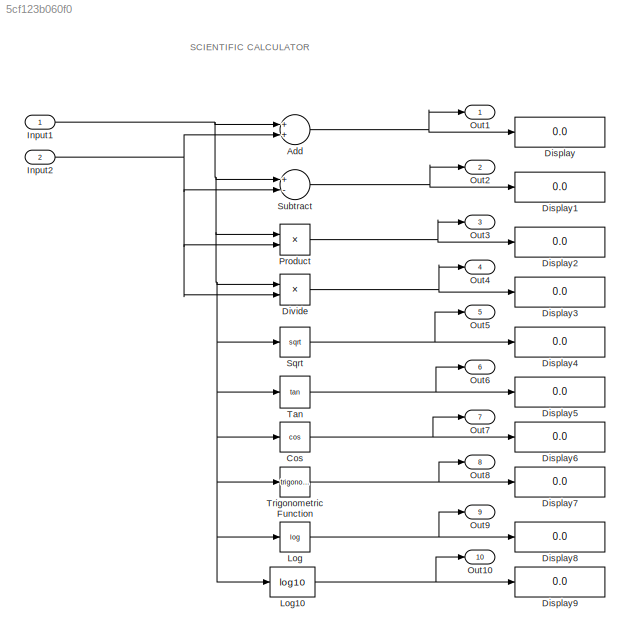
MODEL slx_5cf123b060f0
KIND model
CONFIG AbsTol = auto
CONFIG EnableMultiTasking = off
CONFIG FixedStep = auto
CONFIG MaxStep = auto
CONFIG MinStep = auto
CONFIG RelTol = 1e-3
CONFIG SampleTimeConstraint = Unconstrained
CONFIG Solver = FixedStepDiscrete
CONFIG SolverName = FixedStepDiscrete
CONFIG StartTime = 0.0
CONFIG StopTime = 10.0
BLOCK [Sum] Add
  InputSameDT = off
  OutDataTypeStr = Inherit: Inherit via internal rule
  Ports = [2, 1]
  SaturateOnIntegerOverflow = off
BLOCK [Trigonometry] Cos
  Operator = cos
  Ports = [1, 1]
BLOCK [Display] Display
  Decimation = 1
  Ports = [1]
BLOCK [Display] Display1
  Decimation = 1
  Ports = [1]
BLOCK [Display] Display2
  Decimation = 1
  Ports = [1]
BLOCK [Display] Display3
  Decimation = 1
  Ports = [1]
BLOCK [Display] Display4
  Decimation = 1
  Ports = [1]
BLOCK [Display] Display5
  Decimation = 1
  Ports = [1]
BLOCK [Display] Display6
  Decimation = 1
  Ports = [1]
BLOCK [Display] Display7
  Decimation = 1
  Ports = [1]
BLOCK [Display] Display8
  Decimation = 1
  Ports = [1]
BLOCK [Display] Display9
  Decimation = 1
  Ports = [1]
BLOCK [Product] Divide
  InputSameDT = off
  Inputs = */
  OutDataTypeStr = Inherit: Inherit via internal rule
  Ports = [2, 1]
  RndMeth = Floor
  SaturateOnIntegerOverflow = off
BLOCK [Inport] Input1
  IconDisplay = Port number
  OutDataTypeStr = double
BLOCK [Inport] Input2
  IconDisplay = Port number
  OutDataTypeStr = double
  Port = 2
BLOCK [Math] Log
  Operator = log
  Ports = [1, 1]
BLOCK [Math] Log10
  Operator = log10
  Ports = [1, 1]
  RndMeth = Zero
BLOCK [Outport] Out1
  IconDisplay = Port number
  OutDataTypeStr = double
BLOCK [Outport] Out10
  IconDisplay = Port number
  OutDataTypeStr = double
  Port = 10
BLOCK [Outport] Out2
  IconDisplay = Port number
  OutDataTypeStr = double
  Port = 2
BLOCK [Outport] Out3
  IconDisplay = Port number
  OutDataTypeStr = double
  Port = 3
BLOCK [Outport] Out4
  IconDisplay = Port number
  OutDataTypeStr = double
  Port = 4
BLOCK [Outport] Out5
  IconDisplay = Port number
  OutDataTypeStr = double
  Port = 5
BLOCK [Outport] Out6
  IconDisplay = Port number
  OutDataTypeStr = double
  Port = 6
BLOCK [Outport] Out7
  IconDisplay = Port number
  OutDataTypeStr = double
  Port = 7
BLOCK [Outport] Out8
  IconDisplay = Port number
  OutDataTypeStr = double
  Port = 8
BLOCK [Outport] Out9
  IconDisplay = Port number
  OutDataTypeStr = double
  Port = 9
BLOCK [Product] Product
  InputSameDT = off
  OutDataTypeStr = Inherit: Inherit via internal rule
  Ports = [2, 1]
  RndMeth = Floor
  SaturateOnIntegerOverflow = off
BLOCK [Sqrt] Sqrt
BLOCK [Sum] Subtract
  InputSameDT = off
  Inputs = +-
  OutDataTypeStr = Inherit: Inherit via internal rule
  Ports = [2, 1]
  SaturateOnIntegerOverflow = off
BLOCK [Trigonometry] Tan
  Operator = tan
  Ports = [1, 1]
BLOCK [Trigonometry] Trigonometric Function
  Ports = [1, 1]
ANNOTATION (root): SCIENTIFIC CALCULATOR
NET Add:1 -> Display:1, Out1:1
NET Cos:1 -> Display6:1, Out7:1
NET Divide:1 -> Display3:1, Out4:1
NET Input1:1 -> Add:1, Cos:1, Divide:1, Log10:1, Log:1, Product:1, Sqrt:1, Subtract:1, Tan:1, Trigonometric Function:1
NET Input2:1 -> Add:2, Divide:2, Product:2, Subtract:2
NET Log10:1 -> Display9:1, Out10:1
NET Log:1 -> Display8:1, Out9:1
NET Product:1 -> Display2:1, Out3:1
NET Sqrt:1 -> Display4:1, Out5:1
NET Subtract:1 -> Display1:1, Out2:1
NET Tan:1 -> Display5:1, Out6:1
NET Trigonometric Function:1 -> Display7:1, Out8:1
note: NET lines group one-source signal fan-out (src -> all destinations, sorted); 1:1 wires keep LINE
